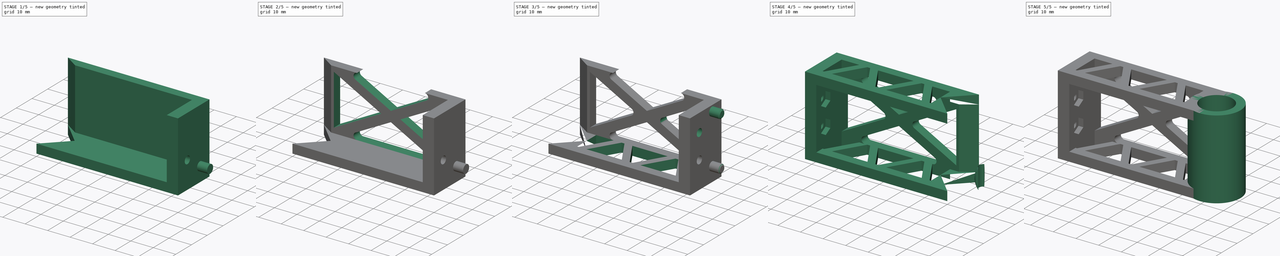
[diagram: build sequence overview — one tinted view per stage of 5, left to right]
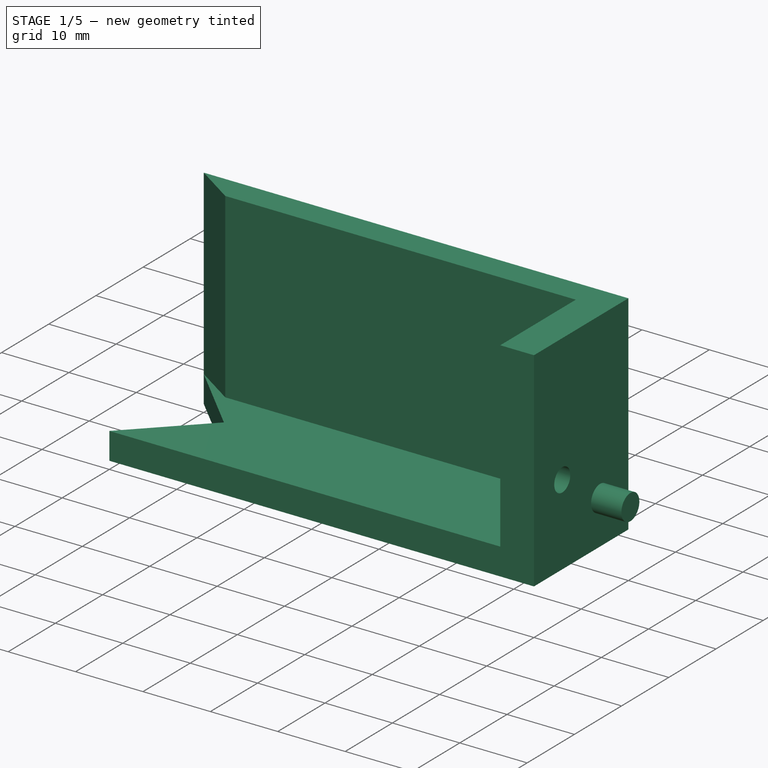
[diagram: stage 1 of 5 — iso view after this stage's code; geometry added in this stage tinted green]
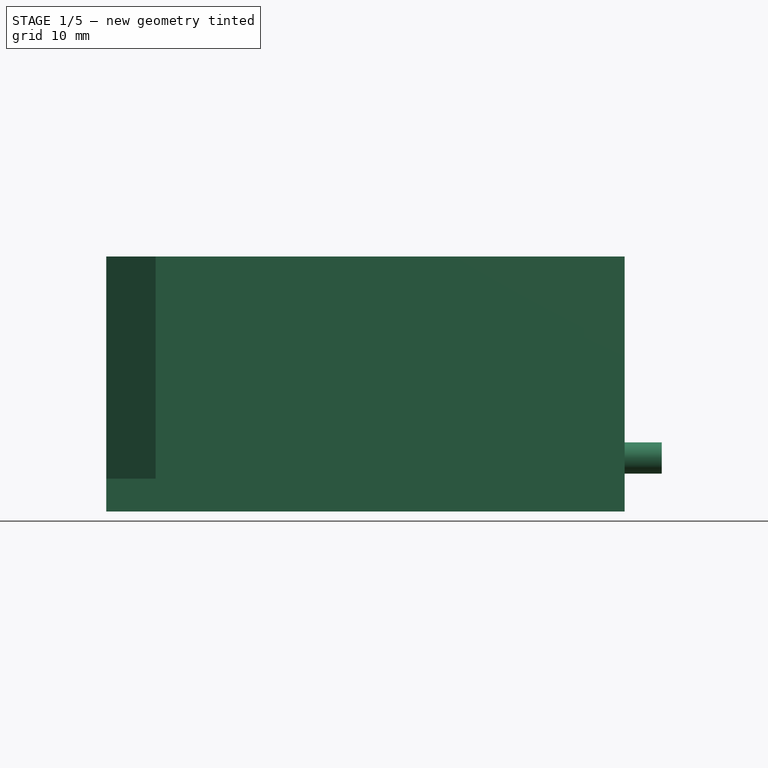
[diagram: stage 1 of 5 — front view after this stage's code; geometry added in this stage tinted green]
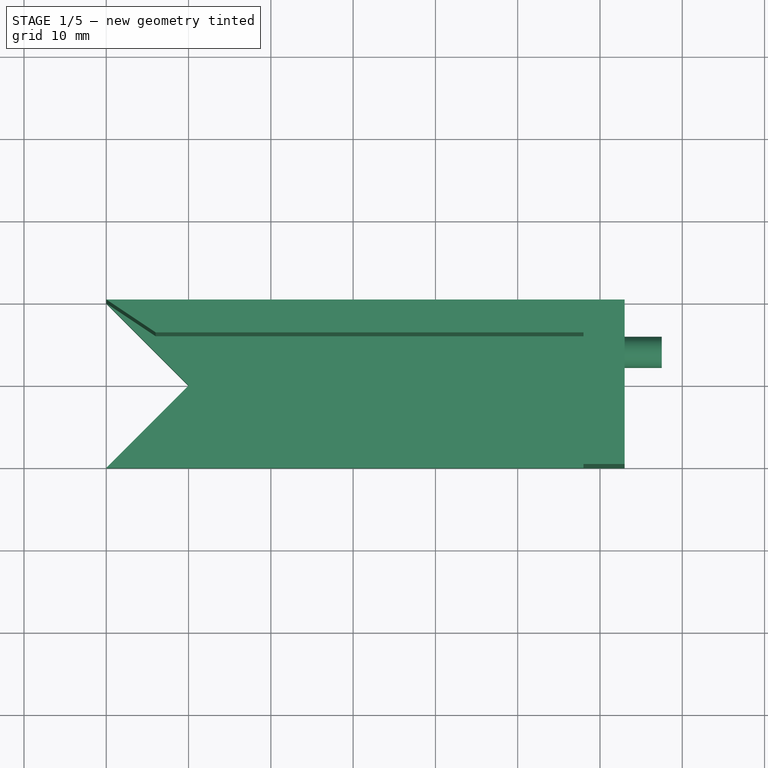
[diagram: stage 1 of 5 — top view after this stage's code; geometry added in this stage tinted green]
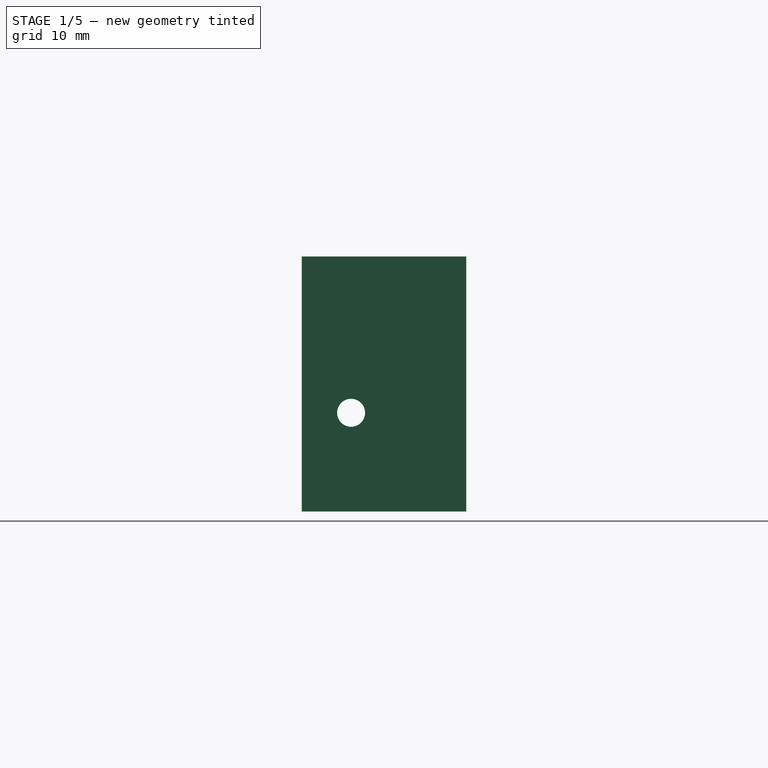
[diagram: stage 1 of 5 — right view after this stage's code; geometry added in this stage tinted green]
FCSTD DOCUMENT  (FreeCAD 0.19R)
Label: post_hat
License: All rights reserved
LicenseURL: http://en.wikipedia.org/wiki/All_rights_reserved
objects: Sketcher::SketchObject×13, PartDesign::Body×8, PartDesign::Revolution×7, PartDesign::Pad×4, PartDesign::Pocket×4, PartDesign::Mirrored×3, PartDesign::Hole×2, PartDesign::Plane×2, PartDesign::LinearPattern×2, PartDesign::Point×1, PartDesign::Chamfer×1, PartDesign::Fillet×1, Part::Mirroring×1
note: 68 computed .brp shape members not serialized (recipe doc carries the construction recipe); baked Part::Feature solids carry a one-line shape summary decoded from their .brp

FEATURE [PartDesign::Body] Body001  label="touch_point_00"
  Group = -> [Sketch003,Revolution001]
  Origin = -> Origin001
  Tip = -> Revolution001
FEATURE [PartDesign::Body] Body006  label="touch_point_12"
  Group = -> [Revolution006]
  Origin = -> Origin006
  Placement = pos=(0,0,22.4) rot=(0,0,1;4.18879rad)
  Tip = -> Revolution006
FEATURE [PartDesign::Body] Body004  label="touch_point_10"
  Group = -> [Revolution004]
  Origin = -> Origin004
  Placement = pos=(0,0,22.4) rot=(0,0,1;0rad)
  Tip = -> Revolution004
FEATURE [PartDesign::Body] Body005  label="touch_point_11"
  Group = -> [Revolution005]
  Origin = -> Origin005
  Placement = pos=(0,0,22.4) rot=(0,0,1;2.0944rad)
  Tip = -> Revolution005
FEATURE [PartDesign::Body] Body002  label="touch_point_01"
  Group = -> [Revolution002]
  Origin = -> Origin002
  Placement = pos=(0,0,0) rot=(0,0,1;2.0944rad)
  Tip = -> Revolution002
FEATURE [PartDesign::Body] Body003  label="touch_point_02"
  Group = -> [Revolution003]
  Origin = -> Origin003
  Placement = pos=(0,0,0) rot=(0,0,1;4.18879rad)
  Tip = -> Revolution003
FEATURE [Sketcher::SketchObject] Sketch010  label="arm_base_sk"
  FullyConstrained = true
  MapMode = 5
  Support = -> [XY_Plane008]
  sketch-geometry (4):
    g0: LineSegment StartX=0 StartY=10 StartZ=0 EndX=6 EndY=6 EndZ=0
    g1: LineSegment StartX=6 StartY=6 StartZ=0 EndX=63 EndY=6 EndZ=0
    g2: LineSegment StartX=63 StartY=6 StartZ=0 EndX=63 EndY=10 EndZ=0
    g3: LineSegment StartX=63 StartY=10 StartZ=0 EndX=0 EndY=10 EndZ=0
  constraints (12):
    c: PointOnObject(g0,g-2)
    c: Coincident(g1,g0)
    c: Horizontal(g1)
    c: Coincident(g2,g1)
    c: Vertical(g2)
    c: Coincident(g3,g2)
    c: Coincident(g3,g0)
    c: Horizontal(g3)
    c: Distance(g2) = 4
    c: DistanceY(g-1,g0) = 10
    c: DistanceX(g3,g3) = 63
    c: DistanceX(g-1,g0) = 6
FEATURE [PartDesign::Pad] Pad  label="arm_base"
  Direction = (1,1,1)
  Length = 31
  Length2 = -4
  Profile = -> Sketch010
  Type = 4
FEATURE [Sketcher::SketchObject] Sketch011  label="hand_base_sk"
  ExternalGeometry = -> [Pad]
  FullyConstrained = true
  MapMode = 5
  Placement = pos=(63,0,0) rot=(0.57735,0.57735,0.57735;2.0944rad)
  Support = -> [Pad]
  sketch-geometry (4):
    g0: LineSegment StartX=6 StartY=4 StartZ=0 EndX=-10 EndY=4 EndZ=0
    g1: LineSegment StartX=-10 StartY=4 StartZ=0 EndX=-10 EndY=31 EndZ=0
    g2: LineSegment StartX=-10 StartY=31 StartZ=0 EndX=6 EndY=31 EndZ=0
    g3: LineSegment StartX=6 StartY=31 StartZ=0 EndX=6 EndY=4 EndZ=0
  constraints (9):
    c: Coincident(g0,g1)
    c: Coincident(g1,g2)
    c: Coincident(g2,g3)
    c: Coincident(g3,g0)
    c: Horizontal(g0)
    c: Vertical(g1)
    c: Coincident(g0,g-3)
    c: Coincident(g2,g-3)
    c: Symmetric(g-4,g1,g-2)
FEATURE [PartDesign::Pad] Pad001  label="hand_base"
  BaseFeature = -> Pad
  Direction = (1,1,1)
  Length = 5
  Length2 = 100
  Profile = -> Sketch011
  Reversed = true
  Type = 0
FEATURE [Sketcher::SketchObject] Sketch012  label="side_bask_sk"
  ExternalGeometry = -> [Pad001]
  FullyConstrained = true
  MapMode = 5
  Placement = pos=(0,0,4) rot=(1,0,0;3.14159rad)
  Support = -> [Pad001]
  sketch-geometry (5):
    g0: LineSegment StartX=0 StartY=-10 StartZ=0 EndX=63 EndY=-10 EndZ=0
    g1: LineSegment StartX=63 StartY=-10 StartZ=0 EndX=63 EndY=10 EndZ=0
    g2: LineSegment StartX=63 StartY=10 StartZ=0 EndX=0 EndY=10 EndZ=0
    g3: LineSegment StartX=0 StartY=10 StartZ=0 EndX=10 EndY=0 EndZ=0
    g4: LineSegment StartX=10 StartY=0 StartZ=0 EndX=0 EndY=-10 EndZ=0
  constraints (12):
    c: Coincident(g0,g-4)
    c: Coincident(g0,g-4)
    c: Coincident(g1,g0)
    c: Coincident(g1,g-3)
    c: Coincident(g2,g1)
    c: PointOnObject(g2,g-2)
    c: Horizontal(g2)
    c: Coincident(g3,g2)
    c: PointOnObject(g3,g-1)
    c: Coincident(g4,g3)
    c: Coincident(g4,g0)
    c: Angle(g0,g4) = 0.785398
FEATURE [PartDesign::Pad] Pad002  label="side_base"
  BaseFeature = -> Pad001
  Direction = (1,1,1)
  Length = 4
  Length2 = 100
  Profile = -> Sketch012
  Type = 0
FEATURE [PartDesign::Point] DatumPoint
  AttacherType = Attacher::AttachEnginePoint
  MapMode = 37
  Placement = pos=(32.975,8.03333,17.5) rot=(0,0,1;0rad)
  Support = -> [Pad]
FEATURE [PartDesign::Plane] DatumPlane
  Length = 106.101
  MapMode = 1
  Placement = pos=(32.975,8.03333,17.5) rot=(0,0,1;3.14159rad)
  ResizeMode = 0
  Support = -> [DatumPoint]
  Width = 63.6015
FEATURE [Sketcher::SketchObject] Sketch013  label="dowel_pin_sk"
  ExternalGeometry = -> [Pad001,DatumPlane]
  FullyConstrained = true
  MapMode = 5
  Placement = pos=(63,0,0) rot=(0.57735,0.57735,0.57735;2.0944rad)
  Support = -> [Pad001]
  sketch-geometry (1):
    g0: Circle CenterX=4 CenterY=6.5 CenterZ=0 NormalX=0 NormalY=0 NormalZ=1 AngleXU=0 Radius=1.9
  constraints (3):
    c: Distance(g0,g-3) = 6
    c: Radius(g0) = 1.9
    c: Distance(g0,g-4) = 11
FEATURE [PartDesign::Pad] Pad003  label="dowel_pin"
  BaseFeature = -> Pad002
  Direction = (1,1,1)
  Length = 4.5
  Length2 = 100
  Profile = -> Sketch013
  Type = 0
FEATURE [Sketcher::SketchObject] Sketch014  label="M3_hole_sk"
  ExternalGeometry = -> [Pad003]
  FullyConstrained = true
  MapMode = 5
  Placement = pos=(63,0,0) rot=(0.57735,0.57735,0.57735;2.0944rad)
  Support = -> [Pad003]
  sketch-geometry (1):
    g0: Circle CenterX=-4 CenterY=12 CenterZ=0 NormalX=0 NormalY=0 NormalZ=1 AngleXU=0 Radius=1
  constraints (3):
    c: DistanceX(g0,g-3) = 8
    c: DistanceY(g-3,g0) = 5.5
    c: Radius(g0) = 1
FEATURE [PartDesign::Hole] Hole001  label="M3_hole"
  BaseFeature = -> Pad003
  Depth = 25
  DepthType = 1
  Diameter = 3.4
  DrillForDepth = false
  DrillPoint = 1
  DrillPointAngle = 118
  HoleCutCountersinkAngle = 90
  HoleCutCustomValues = false
  HoleCutDepth = 0
  HoleCutDiameter = 6.1
  HoleCutType = 0
  ModelActualThread = false
  Profile = -> Sketch014
  Tapered = false
  TaperedAngle = 90
  ThreadAngle = 0
  ThreadClass = 0
  ThreadCutOffInner = 0
  ThreadCutOffOuter = 0
  ThreadDirection = 0
  ThreadFit = 0
  ThreadPitch = 0
  ThreadSize = 9
  ThreadType = 1
  Threaded = false
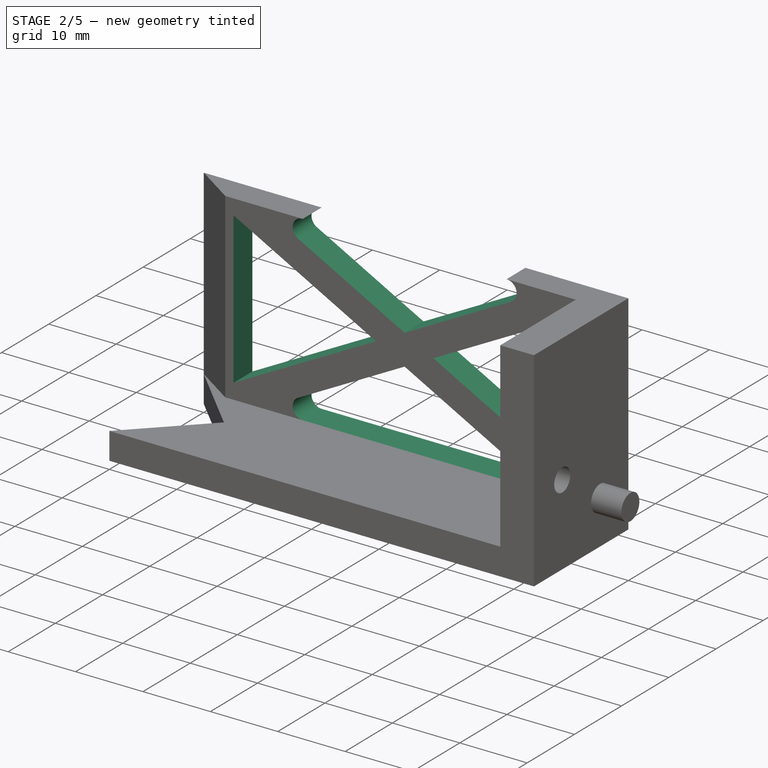
[diagram: stage 2 of 5 — iso view after this stage's code; geometry added in this stage tinted green]
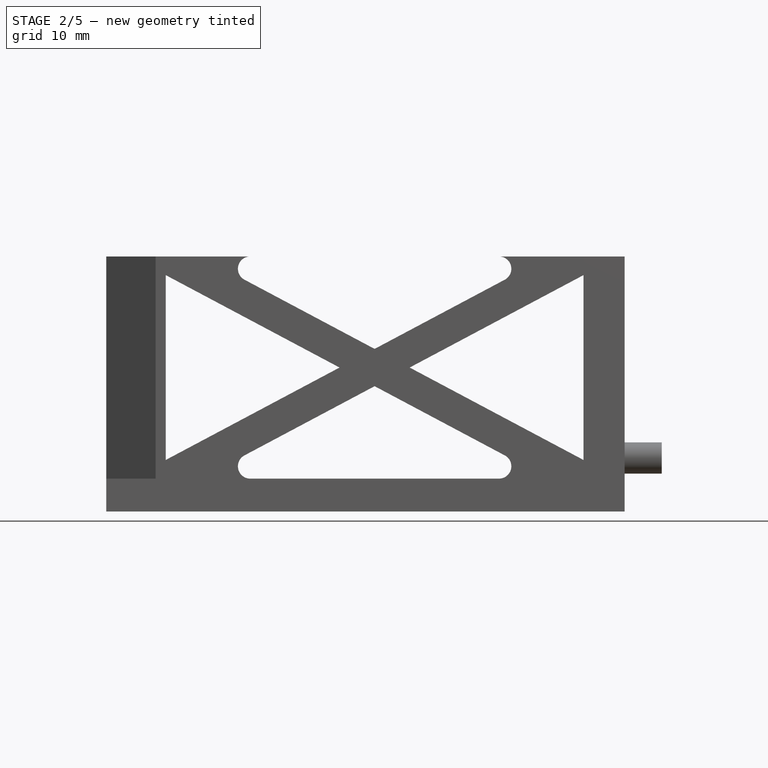
[diagram: stage 2 of 5 — front view after this stage's code; geometry added in this stage tinted green]
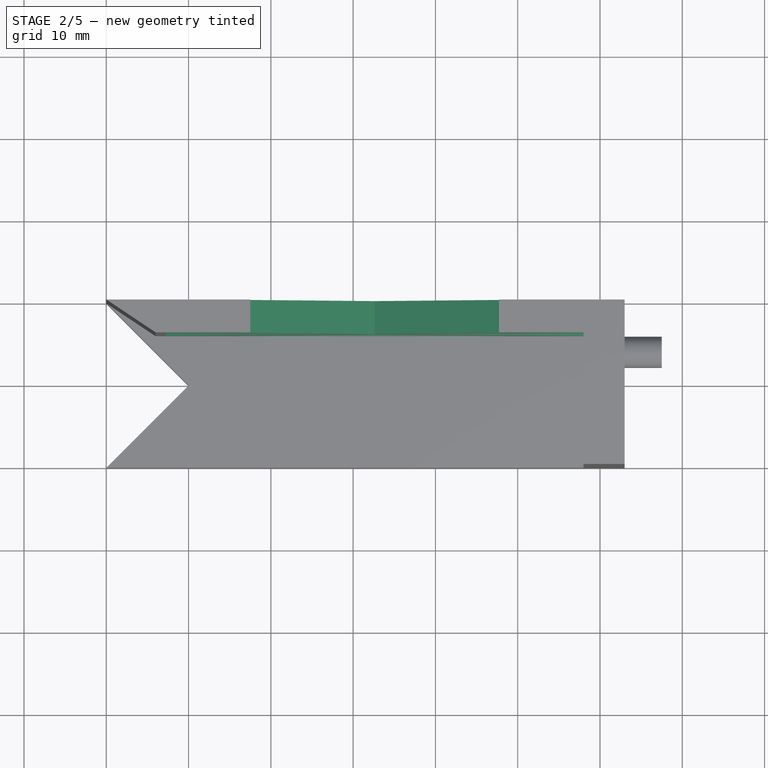
[diagram: stage 2 of 5 — top view after this stage's code; geometry added in this stage tinted green]
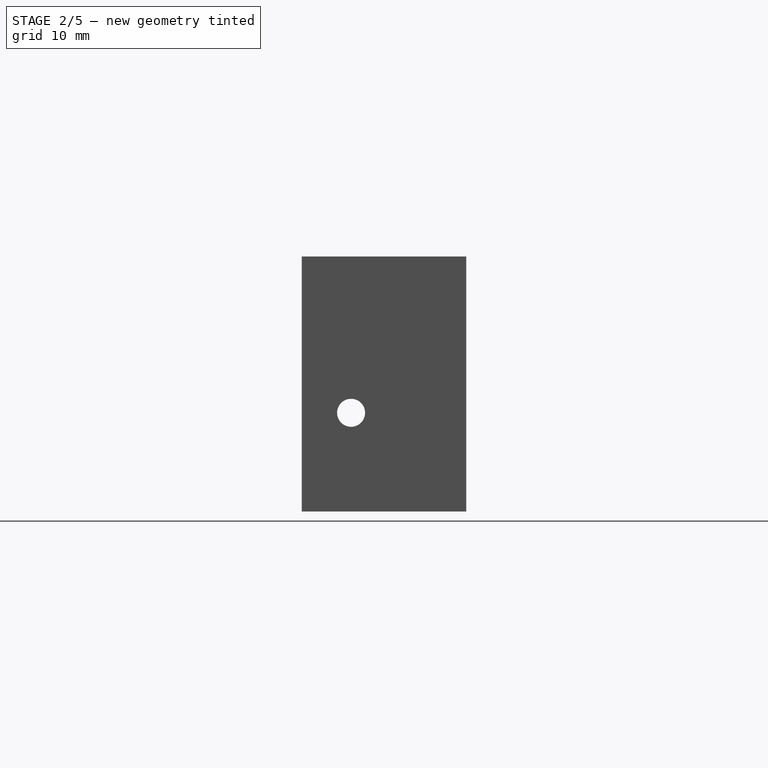
[diagram: stage 2 of 5 — right view after this stage's code; geometry added in this stage tinted green]
FEATURE [Sketcher::SketchObject] Sketch015  label="M3_hex_sk"
  ExternalGeometry = -> [Hole001]
  FullyConstrained = true
  MapMode = 5
  Placement = pos=(58,0,0) rot=(0.57735,-0.57735,-0.57735;2.0944rad)
  Support = -> [Hole001]
  sketch-geometry (7):
    g0: LineSegment StartX=4 StartY=15.3486 StartZ=0 EndX=1.1 EndY=13.6743 EndZ=0
    g1: LineSegment StartX=1.1 StartY=13.6743 StartZ=0 EndX=1.1 EndY=10.3257 EndZ=0
    g2: LineSegment StartX=1.1 StartY=10.3257 StartZ=0 EndX=4 EndY=8.65137 EndZ=0
    g3: LineSegment StartX=4 StartY=8.65137 StartZ=0 EndX=6.9 EndY=10.3257 EndZ=0
    g4: LineSegment StartX=6.9 StartY=10.3257 StartZ=0 EndX=6.9 EndY=13.6743 EndZ=0
    g5: LineSegment StartX=6.9 StartY=13.6743 StartZ=0 EndX=4 EndY=15.3486 EndZ=0
    g6: Circle CenterX=4 CenterY=12 CenterZ=0 NormalX=0 NormalY=0 NormalZ=1 AngleXU=0 Radius=3.34863
  constraints (16):
    c: Coincident(g0,g1)
    c: Coincident(g1,g2)
    c: Coincident(g2,g3)
    c: Coincident(g3,g4)
    c: Coincident(g4,g5)
    c: Coincident(g5,g0)
    c: Equal(g0, g1-g5) x5
    c: PointOnObject(g0,g6)
    c: PointOnObject(g1,g6)
    c: PointOnObject(g2,g6)
    c: PointOnObject(g3,g6)
    c: PointOnObject(g4,g6)
    c: PointOnObject(g5,g6)
    c: Coincident(g6,g-3)
    c: Vertical(g0,g6)
    c: DistanceX(g0,g4) = 5.8
FEATURE [PartDesign::Pocket] Pocket  label="M3_hex"
  BaseFeature = -> Hole001
  Length = 2.15
  Length2 = 100
  Profile = -> Sketch015
  Type = 0
FEATURE [Sketcher::SketchObject] Sketch016  label="arm_lighten1_sk"
  ExternalGeometry = -> [Pad002]
  FullyConstrained = true
  MapMode = 5
  Placement = pos=(0,6,0) rot=(1,0,0;1.5708rad)
  Support = -> [Pad002]
  sketch-geometry (7):
    g0: LineSegment StartX=7.22039 StartY=4 StartZ=0 EndX=58 EndY=31 EndZ=0
    g1: LineSegment StartX=7.22039 StartY=31 StartZ=0 EndX=58 EndY=4 EndZ=0
    g2: LineSegment StartX=17.4967 StartY=4 StartZ=0 EndX=47.7237 EndY=4 EndZ=0
    g3: LineSegment StartX=32.6102 StartY=15.2349 StartZ=0 EndX=16.7925 EndY=6.82442 EndZ=0
    g4: LineSegment StartX=32.6102 StartY=15.2349 StartZ=0 EndX=48.4279 EndY=6.82442 EndZ=0
    g5: ArcOfCircle CenterX=47.7237 CenterY=5.5 CenterZ=0 NormalX=0 NormalY=0 NormalZ=1 AngleXU=0 Radius=1.5 StartAngle=4.71239 EndAngle=7.36529
    g6: ArcOfCircle CenterX=17.4967 CenterY=5.5 CenterZ=0 NormalX=0 NormalY=0 NormalZ=1 AngleXU=0 Radius=1.5 StartAngle=2.05949 EndAngle=4.71239
  constraints (19):
    c: PointOnObject(g0,g-3)
    c: Coincident(g0,g-5)
    c: PointOnObject(g1,g-5)
    c: Coincident(g1,g-4)
    c: Vertical(g1,g0)
    c: Angle(g-3,g0) = 0.488692
    c: PointOnObject(g2,g-3)
    c: PointOnObject(g2,g-3)
    c: Coincident(g4,g3)
    c: Parallel(g4,g1)
    c: Parallel(g3,g0)
    c: Distance(g4,g1) = 2
    c: Distance(g3,g0) = 2
    c: Tangent(g5,g4) = 1.5708
    c: Tangent(g5,g2) = -1.5708
    c: Radius(g5) = 1.5
    c: Tangent(g6,g3) = -1.5708
    c: Tangent(g6,g2) = -1.5708
    c: Equal(g6,g5)
FEATURE [PartDesign::Pocket] Pocket001  label="arm_lighten1"
  BaseFeature = -> Pocket
  Length = 5
  Length2 = 100
  Profile = -> Sketch016
  Type = 2
FEATURE [PartDesign::Mirrored] Mirrored  label="arm_lighten_long"
  BaseFeature = -> Pocket001
  MirrorPlane = -> DatumPlane
  Originals = -> [Pocket001]
FEATURE [PartDesign::Plane] DatumPlane001
  Length = 60.9545
  MapMode = 13
  Placement = pos=(32.6102,7.33333,18.255) rot=(0.57735,-0.57735,-0.57735;2.0944rad)
  ResizeMode = 0
  Support = -> [Mirrored]
  Width = 70.9545
FEATURE [Sketcher::SketchObject] Sketch017  label="arm_lighten2_sk"
  ExternalGeometry = -> [Mirrored]
  FullyConstrained = true
  MapMode = 5
  Placement = pos=(0,6,0) rot=(1,0,0;1.5708rad)
  Support = -> [Mirrored]
  sketch-geometry (3):
    g0: LineSegment StartX=58 StartY=28.7349 StartZ=0 EndX=36.8703 EndY=17.5 EndZ=0
    g1: LineSegment StartX=36.8703 StartY=17.5 StartZ=0 EndX=58 EndY=6.26514 EndZ=0
    g2: LineSegment StartX=58 StartY=6.26514 StartZ=0 EndX=58 EndY=28.7349 EndZ=0
  constraints (9):
    c: PointOnObject(g0,g-5)
    c: Coincident(g1,g0)
    c: PointOnObject(g1,g-5)
    c: Coincident(g2,g1)
    c: Coincident(g2,g0)
    c: Parallel(g0,g-3)
    c: Parallel(g1,g-4)
    c: Distance(g0,g-3) = 4
    c: Distance(g0,g-4) = 4
FEATURE [PartDesign::Pocket] Pocket002  label="arm_lighten2"
  BaseFeature = -> Mirrored
  Length = 5
  Length2 = 100
  Profile = -> Sketch017
  Type = 2
FEATURE [PartDesign::Mirrored] Mirrored001  label="arm_lighten_short"
  BaseFeature = -> Pocket002
  MirrorPlane = -> DatumPlane001
  Originals = -> [Pocket002]
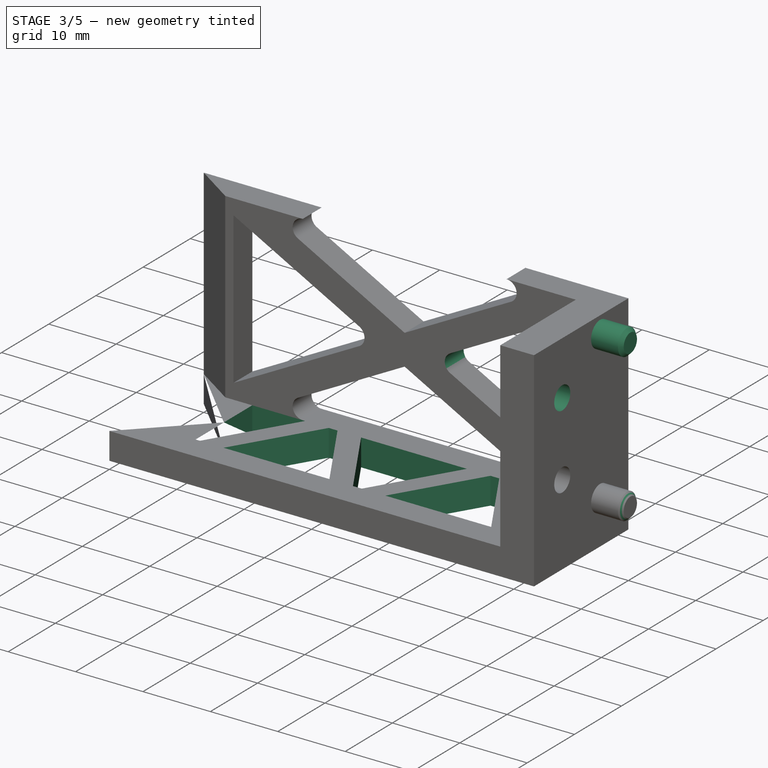
[diagram: stage 3 of 5 — iso view after this stage's code; geometry added in this stage tinted green]
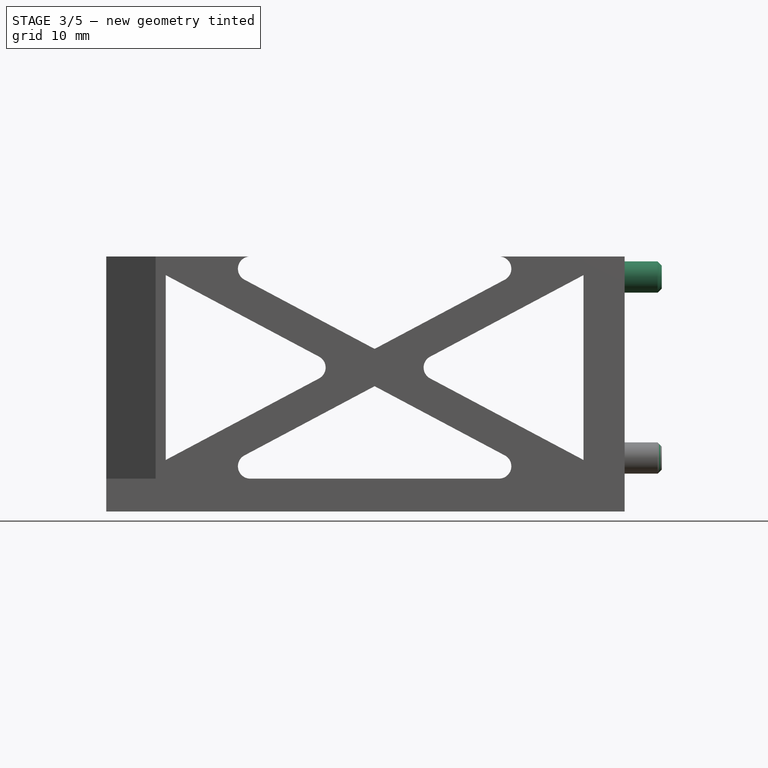
[diagram: stage 3 of 5 — front view after this stage's code; geometry added in this stage tinted green]
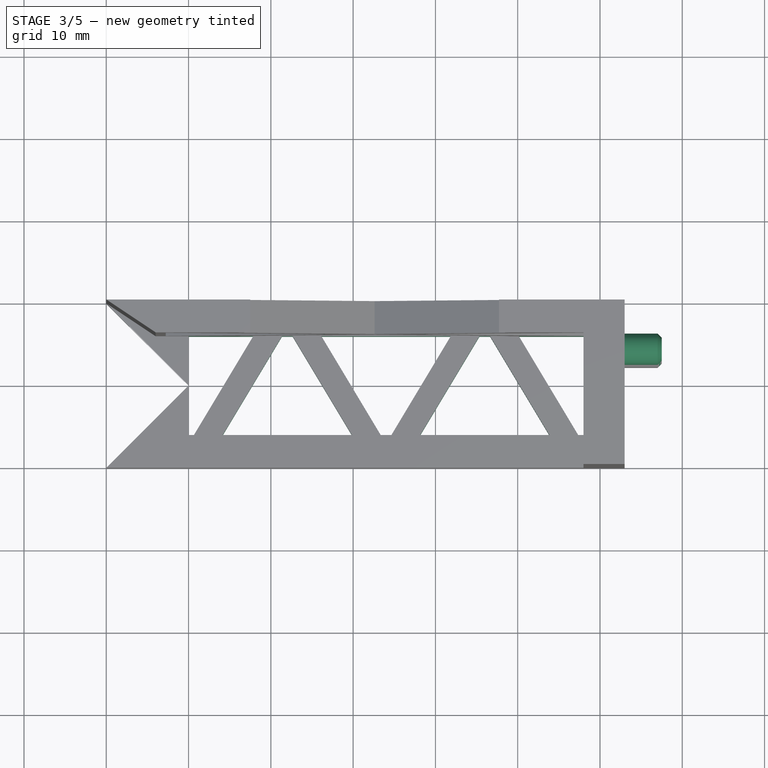
[diagram: stage 3 of 5 — top view after this stage's code; geometry added in this stage tinted green]
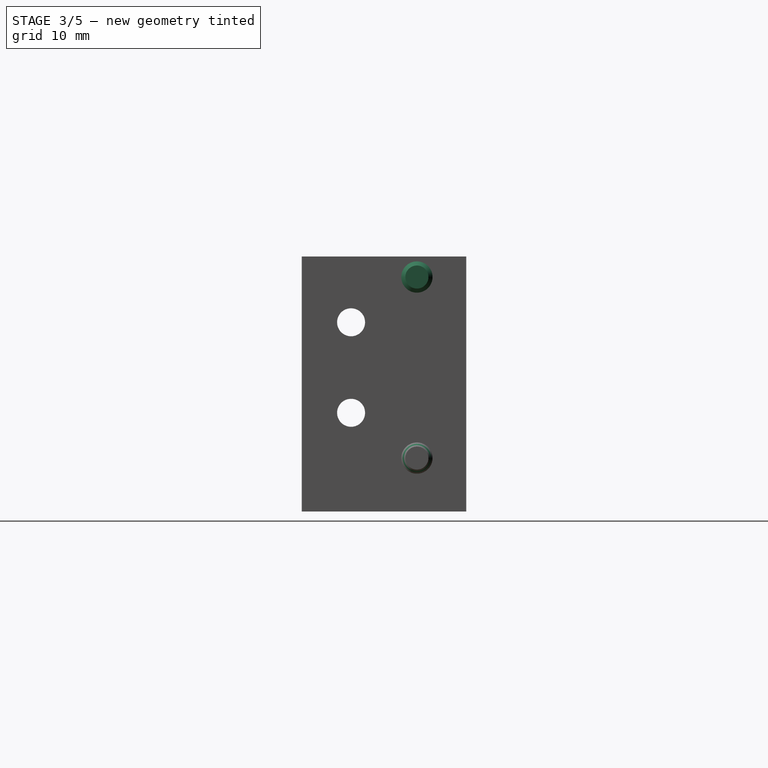
[diagram: stage 3 of 5 — right view after this stage's code; geometry added in this stage tinted green]
FEATURE [Sketcher::SketchObject] Sketch018  label="side_lighten_sk"
  ExternalGeometry = -> [Pad002]
  FullyConstrained = true
  MapMode = 5
  Placement = pos=(0,0,4) rot=(0,0,1;0rad)
  Support = -> [Pad002]
  sketch-geometry (25):
    g0: LineSegment StartX=58 StartY=-10 StartZ=0 EndX=46 EndY=10 EndZ=0
    g1: LineSegment StartX=46 StartY=10 StartZ=0 EndX=34 EndY=-10 EndZ=0
    g2: LineSegment StartX=34 StartY=-10 StartZ=0 EndX=22 EndY=10 EndZ=0
    g3: LineSegment StartX=22 StartY=10 StartZ=0 EndX=10 EndY=-10 EndZ=0
    g4: LineSegment StartX=6 StartY=-6 StartZ=0 EndX=58 EndY=-6 EndZ=0
    g5: LineSegment StartX=21.3493 StartY=6 StartZ=0 EndX=14.1493 EndY=-6 EndZ=0
    g6: LineSegment StartX=14.1493 StartY=-6 StartZ=0 EndX=29.8507 EndY=-6 EndZ=0
    g7: LineSegment StartX=26.1493 StartY=6 StartZ=0 EndX=41.8507 EndY=6 EndZ=0
    g8: LineSegment StartX=34.6507 StartY=-6 StartZ=0 EndX=41.8507 EndY=6 EndZ=0
    g9: LineSegment StartX=21.3493 StartY=6 StartZ=0 EndX=22.6507 EndY=6 EndZ=0
    g10: LineSegment StartX=22.6507 StartY=6 StartZ=0 EndX=29.8507 EndY=-6 EndZ=0
    g11: LineSegment StartX=26.1493 StartY=6 StartZ=0 EndX=33.3493 EndY=-6 EndZ=0
    g12: LineSegment StartX=33.3493 StartY=-6 StartZ=0 EndX=34.6507 EndY=-6 EndZ=0
    g13: LineSegment StartX=38.1493 StartY=-6 StartZ=0 EndX=53.8507 EndY=-6 EndZ=0
    g14: LineSegment StartX=38.1493 StartY=-6 StartZ=0 EndX=45.3493 EndY=6 EndZ=0
    g15: LineSegment StartX=46.6507 StartY=6 StartZ=0 EndX=53.8507 EndY=-6 EndZ=0
    g16: LineSegment StartX=45.3493 StartY=6 StartZ=0 EndX=46.6507 EndY=6 EndZ=0
    g17: LineSegment StartX=50.1493 StartY=6 StartZ=0 EndX=57.3493 EndY=-6 EndZ=0
    g18: LineSegment StartX=58 StartY=-6 StartZ=0 EndX=58 EndY=6 EndZ=0
    g19: LineSegment StartX=50.1493 StartY=6 StartZ=0 EndX=58 EndY=6 EndZ=0
    g20: LineSegment StartX=57.3493 StartY=-6 StartZ=0 EndX=58 EndY=-6 EndZ=0
    g21: LineSegment StartX=10 StartY=6 StartZ=0 EndX=10 EndY=-6 EndZ=0
    g22: LineSegment StartX=10 StartY=-6 StartZ=0 EndX=10.6507 EndY=-6 EndZ=0
    g23: LineSegment StartX=10.6507 StartY=-6 StartZ=0 EndX=17.8507 EndY=6 EndZ=0
    g24: LineSegment StartX=10 StartY=6 StartZ=0 EndX=17.8507 EndY=6 EndZ=0
  constraints (72):
    c: Coincident(g0,g-3)
    c: Coincident(g1,g0)
    c: PointOnObject(g1,g-3)
    c: Coincident(g2,g1)
    c: Coincident(g3,g2)
    c: PointOnObject(g3,g-3)
    c: Equal(g3,g2)
    c: Equal(g2,g1)
    c: Equal(g1,g0)
    c: Vertical(g3,g-4)
    c: PointOnObject(g2,g-5)
    c: Symmetric(g4,g-6,g-1)
    c: Symmetric(g4,g-6,g-1)
    c: PointOnObject(g0,g-5)
    c: PointOnObject(g5,g-6)
    c: PointOnObject(g5,g4)
    c: Coincident(g6,g5)
    c: PointOnObject(g6,g4)
    c: Parallel(g5,g3)
    c: PointOnObject(g7,g-6)
    c: PointOnObject(g7,g-6)
    c: PointOnObject(g8,g4)
    c: Coincident(g8,g7)
    c: Parallel(g8,g1)
    c: Coincident(g9,g5)
    c: PointOnObject(g9,g-6)
    c: Coincident(g10,g9)
    c: Coincident(g10,g6)
    c: Parallel(g10,g2)
    c: Distance(g6,g2) = 1.5
    c: Distance(g5,g3) = 1.5
    c: Coincident(g11,g7)
    c: PointOnObject(g11,g4)
    c: Coincident(g12,g11)
    c: Coincident(g12,g8)
    c: Parallel(g11,g2)
    c: Distance(g7,g2) = 1.5
    c: Distance(g7,g1) = 1.5
    c: PointOnObject(g13,g4)
    c: PointOnObject(g13,g4)
    c: Coincident(g14,g13)
    c: PointOnObject(g14,g-6)
    c: PointOnObject(g15,g-6)
    c: Coincident(g15,g13)
    c: Coincident(g16,g14)
    c: Coincident(g16,g15)
    c: Parallel(g14,g1)
    c: Parallel(g15,g0)
    c: Distance(g13,g1) = 1.5
    c: Distance(g13,g0) = 1.5
    c: PointOnObject(g17,g-6)
    c: PointOnObject(g17,g4)
    c: Coincident(g18,g4)
    c: Coincident(g18,g-7)
    c: Coincident(g19,g17)
    c: Coincident(g19,g18)
    c: Coincident(g20,g17)
    c: Coincident(g20,g18)
    c: Parallel(g17,g0)
    c: Distance(g17,g0) = 1.5
    c: PointOnObject(g21,g-6)
    c: PointOnObject(g21,g4)
    c: Vertical(g21)
    c: Coincident(g22,g21)
    c: PointOnObject(g22,g4)
    c: Coincident(g23,g22)
    c: PointOnObject(g23,g-6)
    c: Coincident(g24,g21)
    c: Coincident(g24,g23)
    c: PointOnObject(g-4,g21)
    c: Parallel(g23,g3)
    c: Distance(g23,g3) = 1.5
FEATURE [PartDesign::Pocket] Pocket003  label="side_lighten"
  BaseFeature = -> Mirrored001
  Length = 5
  Length2 = 100
  Profile = -> Sketch018
  Type = 2
FEATURE [PartDesign::Chamfer] Chamfer  label="dowel_pin_chamfer"
  Angle = 45
  Base = -> Pocket003 [Face64]
  BaseFeature = -> Pocket003
  ChamferType = 0
  FlipDirection = false
  Size = 0.5
  Size2 = 1
  SupportTransform = false
FEATURE [PartDesign::LinearPattern] LinearPattern  label="dual_dowel_pin"
  BaseFeature = -> Chamfer
  Direction = -> Z_Axis008
  Length = 22
  Occurrences = 2
  Originals = -> [Pad003,Chamfer]
FEATURE [PartDesign::LinearPattern] LinearPattern001  label="dual_M3"
  BaseFeature = -> LinearPattern
  Direction = -> Z_Axis008
  Length = 11
  Occurrences = 2
  Originals = -> [Hole001,Pocket]
FEATURE [PartDesign::Fillet] Fillet
  Base = -> LinearPattern001 [Edge182,Edge188]
  BaseFeature = -> LinearPattern001
  Radius = 1.5
  SupportTransform = false
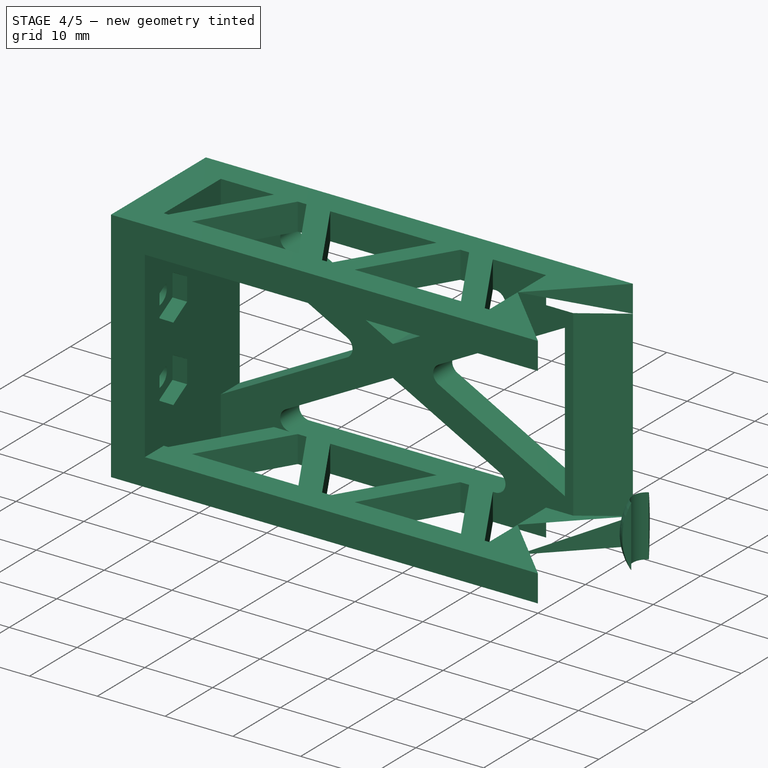
[diagram: stage 4 of 5 — iso view after this stage's code; geometry added in this stage tinted green]
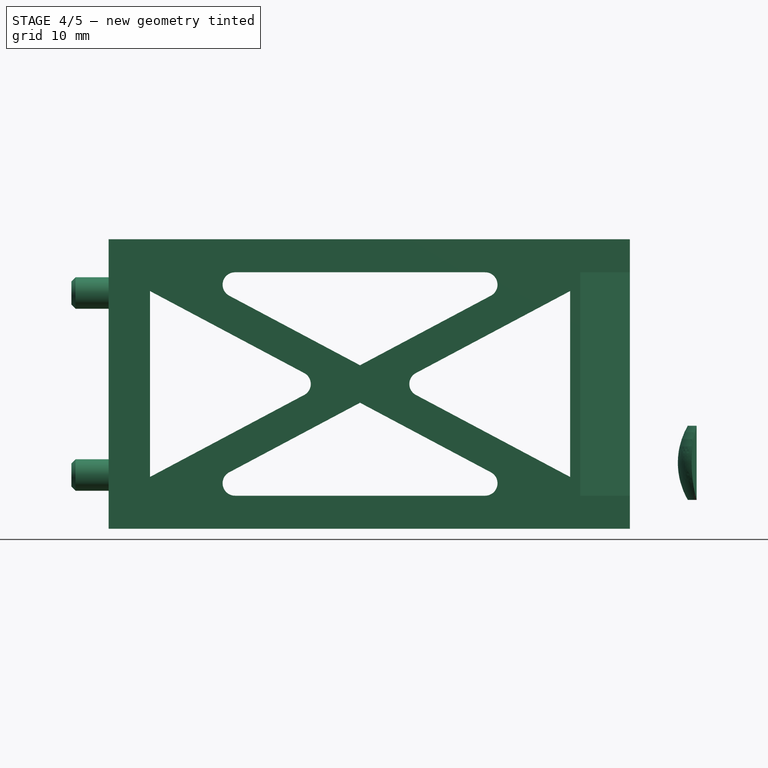
[diagram: stage 4 of 5 — front view after this stage's code; geometry added in this stage tinted green]
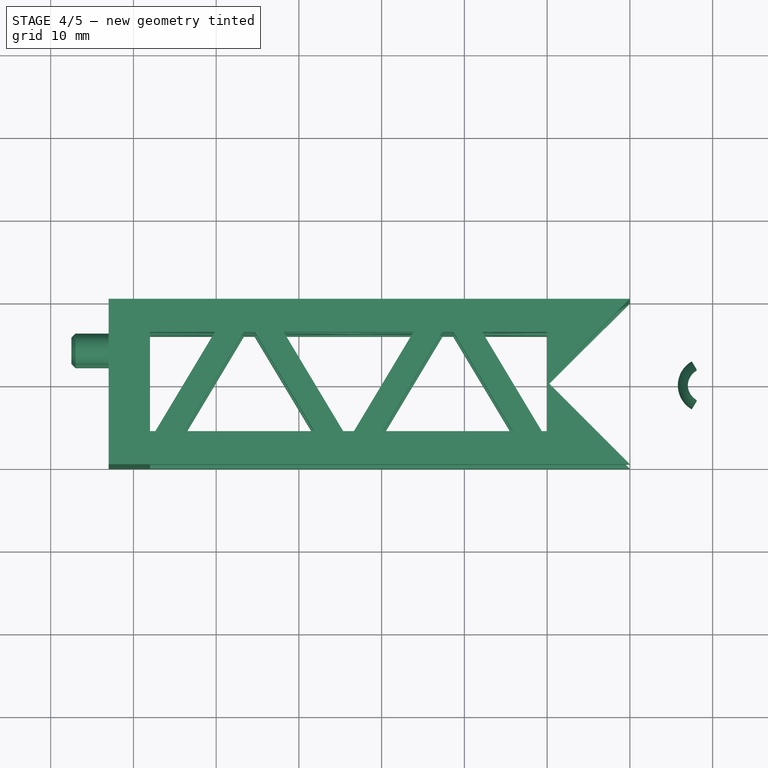
[diagram: stage 4 of 5 — top view after this stage's code; geometry added in this stage tinted green]
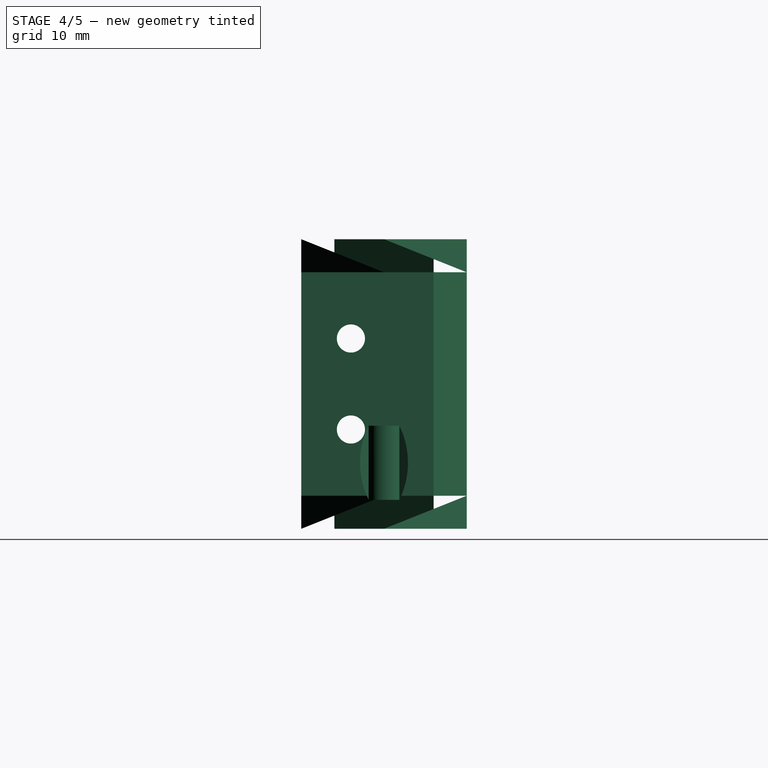
[diagram: stage 4 of 5 — right view after this stage's code; geometry added in this stage tinted green]
FEATURE [Sketcher::SketchObject] Sketch  label="sleeve_body_sketch"
  FullyConstrained = true
  MapMode = 5
  Placement = pos=(0,0,0) rot=(1,0,0;1.5708rad)
  Support = -> [XZ_Plane]
  sketch-geometry (6):
    g0: LineSegment StartX=0 StartY=0 StartZ=0 EndX=10.5 EndY=0 EndZ=0
    g1: LineSegment StartX=10.5 StartY=0 StartZ=0 EndX=10.5 EndY=35 EndZ=0
    g2: LineSegment StartX=10.5 StartY=35 StartZ=0 EndX=7 EndY=35 EndZ=0
    g3: LineSegment StartX=7 StartY=35 StartZ=0 EndX=7 EndY=3.5 EndZ=0
    g4: LineSegment StartX=7 StartY=3.5 StartZ=0 EndX=0 EndY=3.5 EndZ=0
    g5: LineSegment StartX=0 StartY=3.5 StartZ=0 EndX=0 EndY=0 EndZ=0
  constraints (17):
    c: Coincident(g-1,g0)
    c: PointOnObject(g0,g-1)
    c: Coincident(g0,g1)
    c: Vertical(g1)
    c: Coincident(g1,g2)
    c: Horizontal(g2)
    c: Coincident(g2,g3)
    c: Vertical(g3)
    c: Coincident(g3,g4)
    c: Horizontal(g4)
    c: Coincident(g4,g5)
    c: Coincident(g5,g0)
    c: Vertical(g5)
    c: Distance(g5) = 3.5
    c: Distance(g4) = 7
    c: Distance(g2) = 3.5
    c: Distance(g1) = 35
FEATURE [Sketcher::SketchObject] Sketch004  label="1on4_hole_sketch"
  FullyConstrained = true
  MapMode = 5
  Support = -> [XY_Plane]
  sketch-geometry (1):
    g0: Circle CenterX=0 CenterY=0 CenterZ=0 NormalX=0 NormalY=0 NormalZ=1 AngleXU=0 Radius=1
  constraints (2):
    c: Coincident(g0,g-1)
    c: Radius(g0) = 1
FEATURE [PartDesign::Revolution] Revolution  label="sleeve_body"
  Angle = 360
  Axis = (-3e-16,3e-16,1)
  Base = (0,0,0)
  Placement = pos=(0,0,0) rot=(1,0,0;1.5708rad)
  Profile = -> Sketch
  ReferenceAxis = -> Z_Axis
  Reversed = true
FEATURE [PartDesign::Body] Body  label="sleeve"
  Group = -> [Sketch,Revolution,Sketch004,Hole]
  Origin = -> Origin
  Tip = -> Hole
FEATURE [PartDesign::Revolution] Revolution002  label="touch_point001"
  Angle = 120
  Axis = (0,-1.8e-15,7.97846)
  Base = (9.13913,0,0)
  Midplane = true
  Placement = pos=(0,0,0) rot=(1,0,0;1.5708rad)
  Profile = -> Sketch003
  ReferenceAxis = -> Sketch003 [Axis1]
FEATURE [PartDesign::Revolution] Revolution003  label="touch_point002"
  Angle = 120
  Axis = (0,-1.8e-15,7.97846)
  Base = (9.13913,0,0)
  Midplane = true
  Placement = pos=(0,0,0) rot=(1,0,0;1.5708rad)
  Profile = -> Sketch003
  ReferenceAxis = -> Sketch003 [Axis1]
FEATURE [PartDesign::Mirrored] Mirrored002  label="sdie_sys"
  BaseFeature = -> Fillet
  MirrorPlane = -> DatumPlane
  Originals = -> [Pad002,Pocket003]
FEATURE [PartDesign::Body] Body008  label="left_arm"
  Group = -> [Sketch010,Pad,Sketch011,Pad001,Sketch012,Pad002,DatumPoint,DatumPlane,Sketch013,Pad003,Sketch014,Hole001,Sketch015,Pocket,Sketch016,Pocket001,Mirrored,DatumPlane001,Sketch017,Pocket002,Mirrored001,Sketch018,Pocket003,Chamfer,LinearPattern,LinearPattern001,Fillet,Mirrored002]
  Origin = -> Origin008
  Tip = -> Mirrored002
FEATURE [Part::Mirroring] Part__Mirroring  label="right_arm"
  Base = (0,0,0)
  Normal = (1,0,0)
  Source = -> Body008
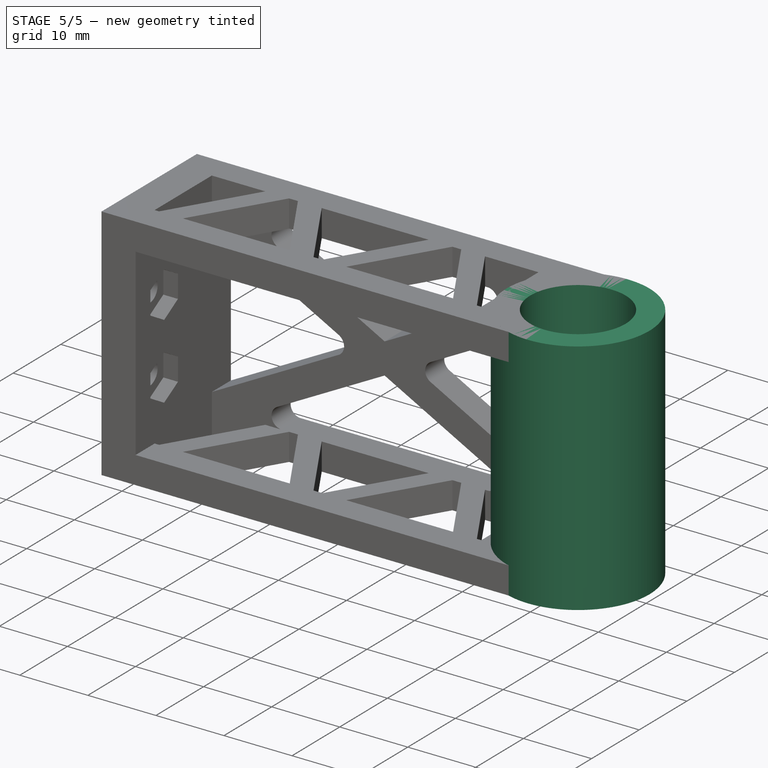
[diagram: stage 5 of 5 — iso view after this stage's code; geometry added in this stage tinted green]
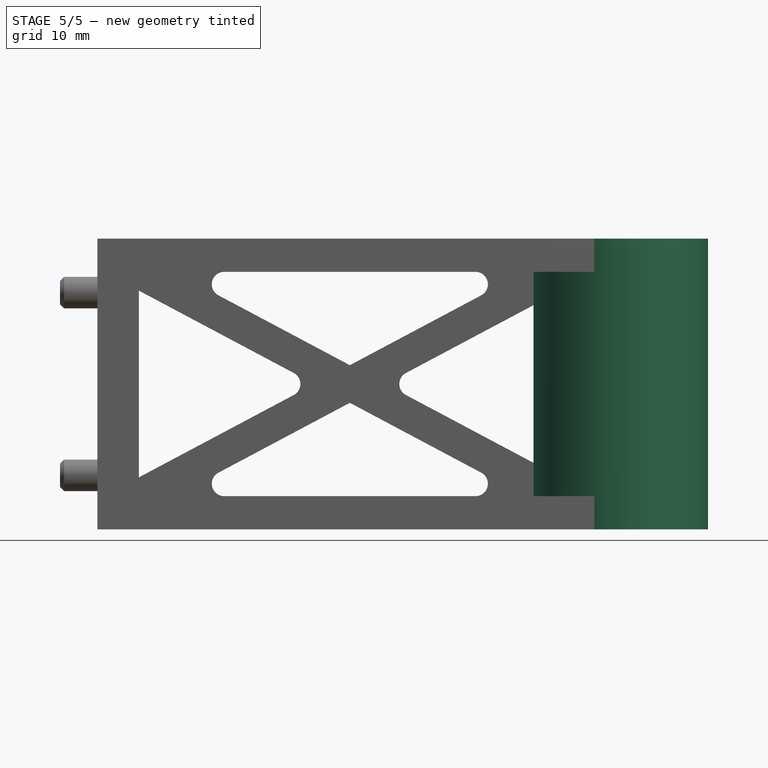
[diagram: stage 5 of 5 — front view after this stage's code; geometry added in this stage tinted green]
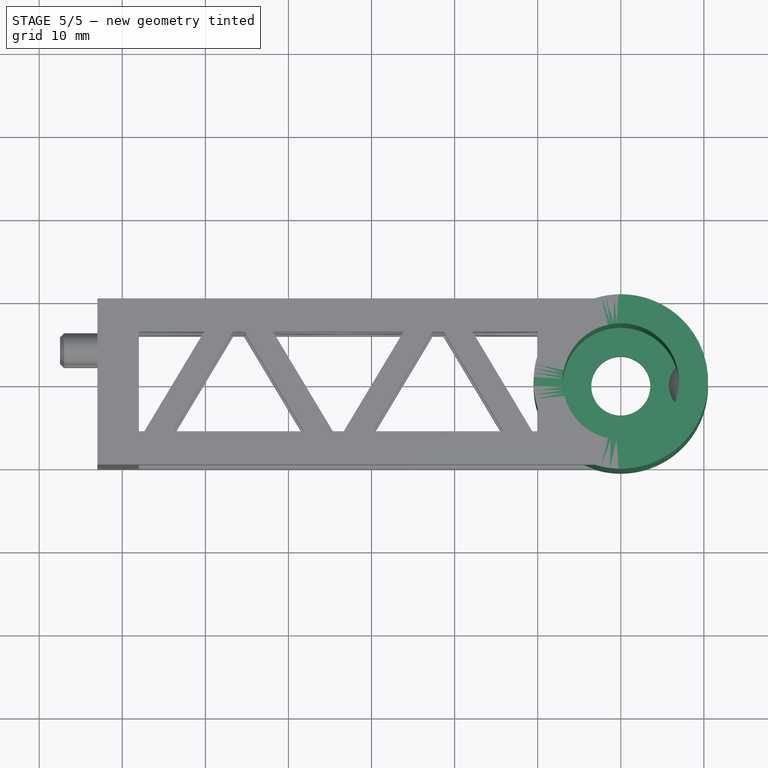
[diagram: stage 5 of 5 — top view after this stage's code; geometry added in this stage tinted green]
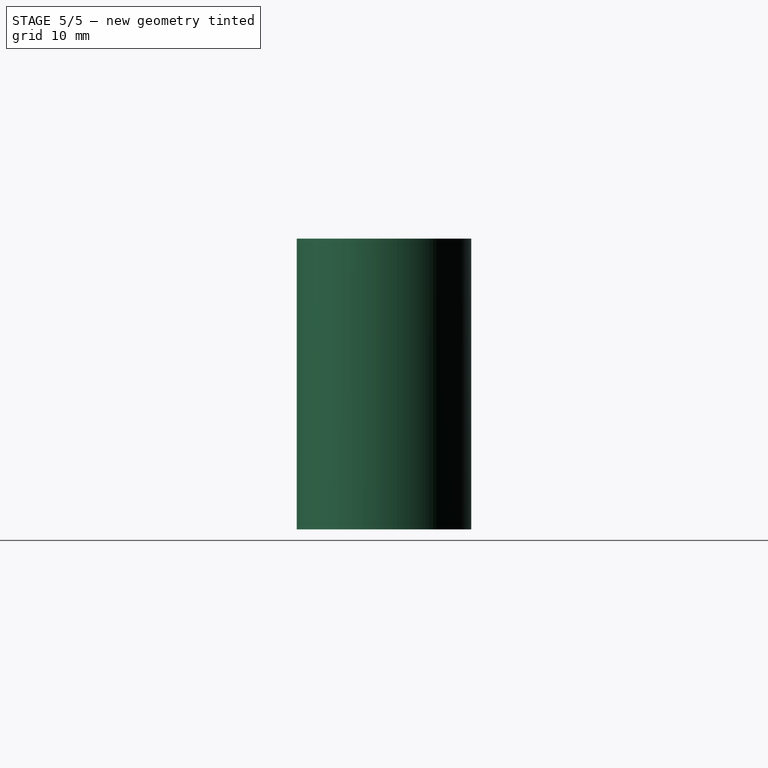
[diagram: stage 5 of 5 — right view after this stage's code; geometry added in this stage tinted green]
FEATURE [Sketcher::SketchObject] Sketch002  label="touch_point_rot_helper_sketch"
  ExternalGeometry = -> [Revolution]
  FullyConstrained = true
  MapMode = 5
  Support = -> [XY_Plane]
  sketch-geometry (4):
    g0: ArcOfCircle CenterX=9.13913 CenterY=0 CenterZ=0 NormalX=0 NormalY=0 NormalZ=1 AngleXU=0 Radius=3.33913 StartAngle=3.14159 EndAngle=3.86684
    g1: LineSegment StartX=0 StartY=0 StartZ=0 EndX=6.64034 EndY=-2.21492 EndZ=0
    g2: LineSegment StartX=6.64034 StartY=-2.21492 StartZ=0 EndX=9.13913 EndY=0 EndZ=0
    g3: LineSegment StartX=5.8 StartY=-2.63e-14 StartZ=0 EndX=0 EndY=-2.63e-14 EndZ=0
  constraints (11):
    c: PointOnObject(g0,g-1)
    c: PointOnObject(g0,g-3)
    c: Coincident(g1,g-1)
    c: Coincident(g1,g0)
    c: Coincident(g2,g0)
    c: Coincident(g2,g0)
    c: Angle(g2,g1) = 2.0944
    c: Coincident(g3,g0)
    c: Coincident(g3,g-1)
    c: Horizontal(g3)
    c: Distance(g3) = 5.8
FEATURE [Sketcher::SketchObject] Sketch003  label="touch_point_sketch"
  ExternalGeometry = -> [Sketch002,Revolution]
  FullyConstrained = true
  MapMode = 5
  Placement = pos=(0,0,0) rot=(1,0,0;1.5708rad)
  Support = -> [XZ_Plane001]
  sketch-geometry (5):
    g0: ArcOfCircle CenterX=14.7569 CenterY=7.97846 CenterZ=0 NormalX=0 NormalY=0 NormalZ=1 AngleXU=0 Radius=8.95692 StartAngle=2.61799 EndAngle=3.66519
    g1: GeomPoint X=5.8 Y=7.97846 Z=0
    g2: LineSegment StartX=7 StartY=12.4569 StartZ=0 EndX=7 EndY=3.5 EndZ=0
    g3: LineSegment StartX=14.7569 StartY=7.97846 StartZ=0 EndX=7 EndY=3.5 EndZ=0
    g4: LineSegment StartX=9.13913 StartY=0 StartZ=0 EndX=9.13913 EndY=7.97846 EndZ=0
  constraints (13):
    c: Coincident(g0,g-6)
    c: PointOnObject(g0,g-5)
    c: PointOnObject(g1,g0)
    c: Horizontal(g1,g0)
    c: Vertical(g1,g-3)
    c: Coincident(g2,g0)
    c: Coincident(g2,g0)
    c: Coincident(g3,g0)
    c: Coincident(g3,g0)
    c: Angle(g3,g2) = 1.0472
    c: Coincident(g4,g-4)
    c: Vertical(g4)
    c: Horizontal(g4,g0)
FEATURE [PartDesign::Hole] Hole  label="1on4_hole"
  BaseFeature = -> Revolution
  Depth = 25
  DepthType = 1
  Diameter = 7.1
  DrillForDepth = false
  DrillPoint = 1
  DrillPointAngle = 118
  HoleCutCountersinkAngle = 90
  HoleCutCustomValues = false
  HoleCutDepth = 0
  HoleCutDiameter = 0
  HoleCutType = 0
  ModelActualThread = false
  Placement = pos=(0,0,0) rot=(1,0,0;1.5708rad)
  Profile = -> Sketch004
  Reversed = true
  Tapered = false
  TaperedAngle = 90
  ThreadAngle = 0
  ThreadClass = 0
  ThreadCutOffInner = 0
  ThreadCutOffOuter = 0
  ThreadDirection = 0
  ThreadFit = 0
  ThreadPitch = 0
  ThreadSize = 10
  ThreadType = 4
  Threaded = false
FEATURE [PartDesign::Revolution] Revolution004  label="touch_point003"
  Angle = 120
  Axis = (0,-1.8e-15,7.97846)
  Base = (9.13913,0,0)
  Midplane = true
  Placement = pos=(0,0,0) rot=(1,0,0;1.5708rad)
  Profile = -> Sketch003
  ReferenceAxis = -> Sketch003 [Axis1]
FEATURE [PartDesign::Revolution] Revolution005  label="touch_point004"
  Angle = 120
  Axis = (0,-1.8e-15,7.97846)
  Base = (9.13913,0,0)
  Midplane = true
  Placement = pos=(0,0,0) rot=(1,0,0;1.5708rad)
  Profile = -> Sketch003
  ReferenceAxis = -> Sketch003 [Axis1]
FEATURE [PartDesign::Revolution] Revolution006  label="touch_point005"
  Angle = 120
  Axis = (0,-1.8e-15,7.97846)
  Base = (9.13913,0,0)
  Midplane = true
  Placement = pos=(0,0,0) rot=(1,0,0;1.5708rad)
  Profile = -> Sketch003
  ReferenceAxis = -> Sketch003 [Axis1]
FEATURE [PartDesign::Revolution] Revolution001  label="touch_point"
  Angle = 120
  Axis = (0,-1.8e-15,7.97846)
  Base = (9.13913,0,0)
  Midplane = true
  Placement = pos=(0,0,0) rot=(1,0,0;1.5708rad)
  Profile = -> Sketch003
  ReferenceAxis = -> Sketch003 [Axis1]
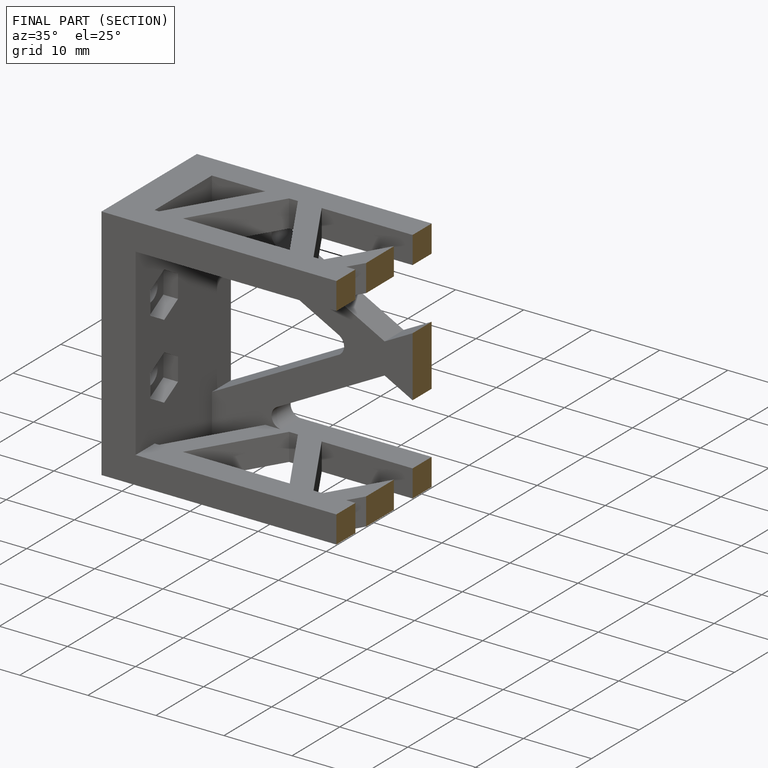
[diagram: finished part — half-section view (interior)]
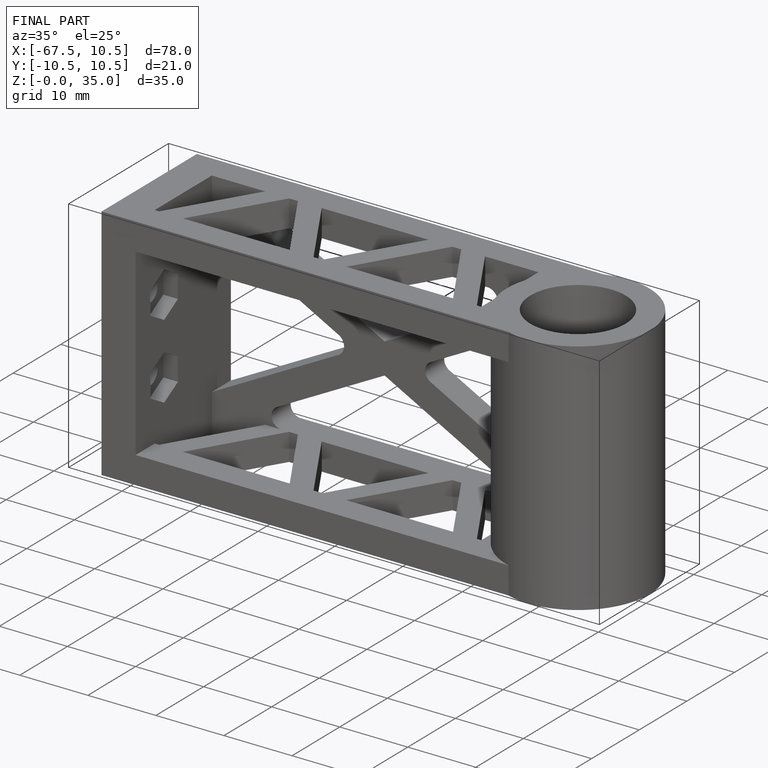
[diagram: finished part — iso view with bounding-box wireframe]
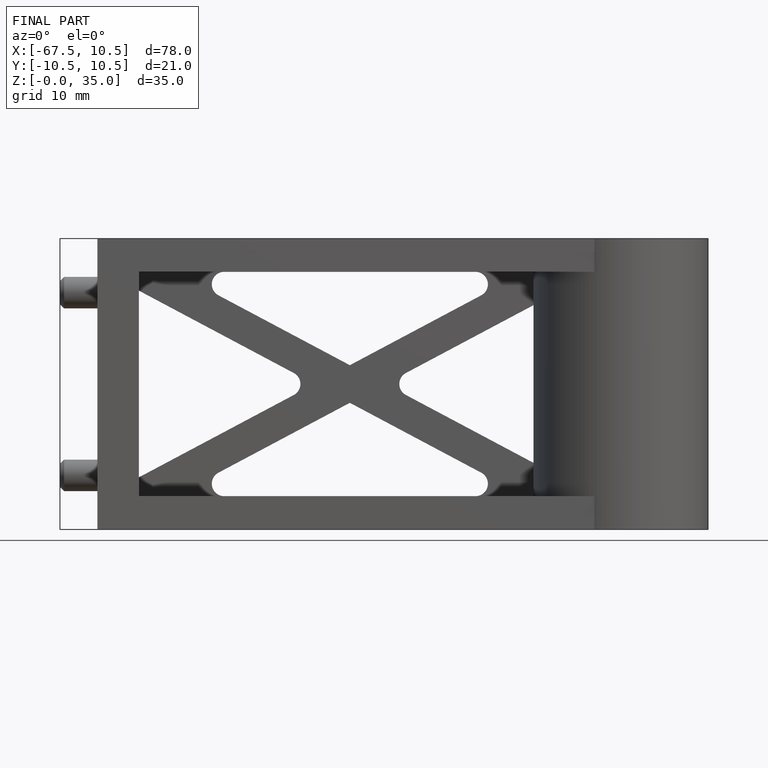
[diagram: finished part — front view with bounding-box wireframe]
